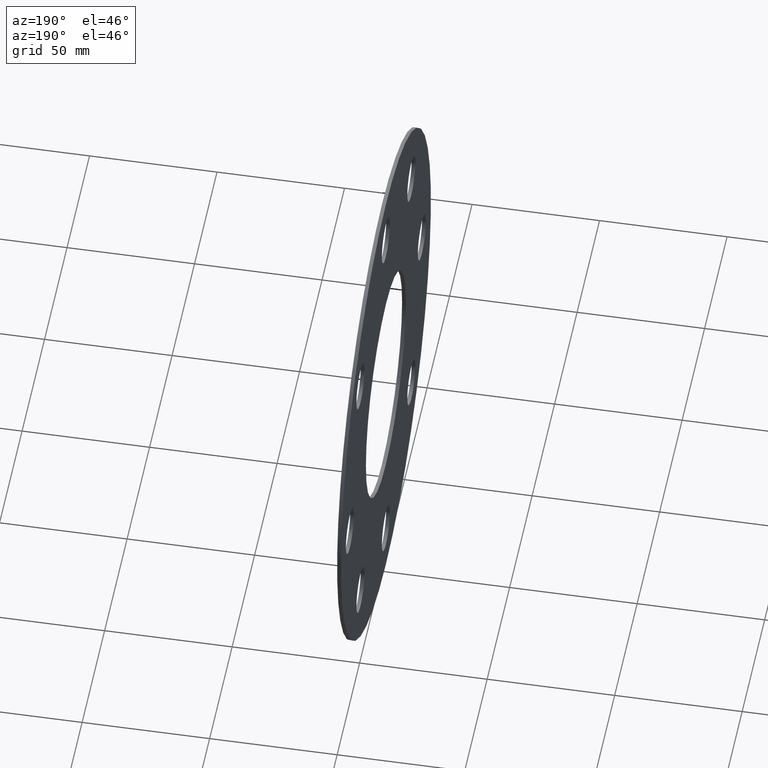
[diagram: clean part render]
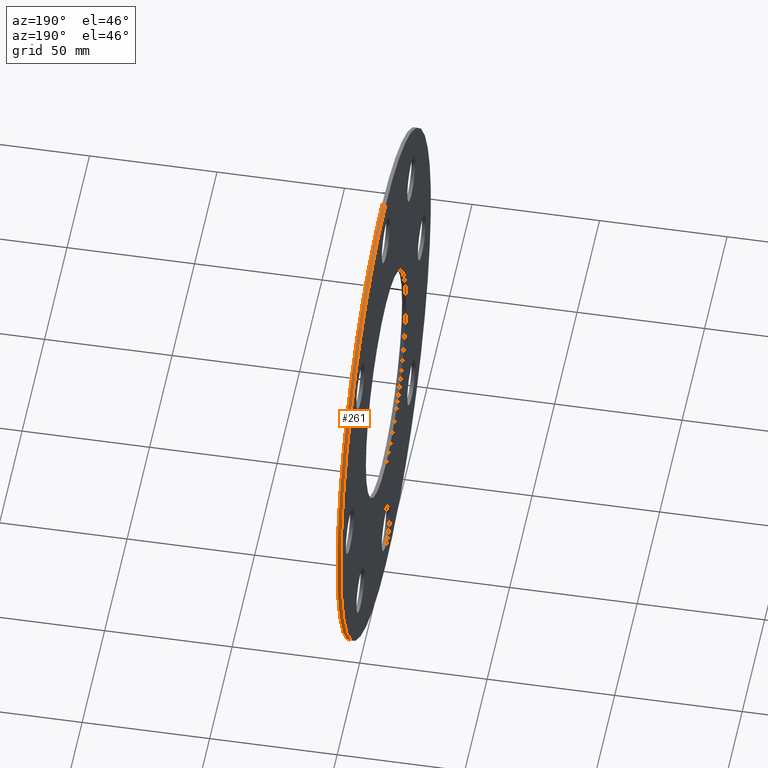
[diagram: same view with one face highlighted and labeled with its STEP entity id]
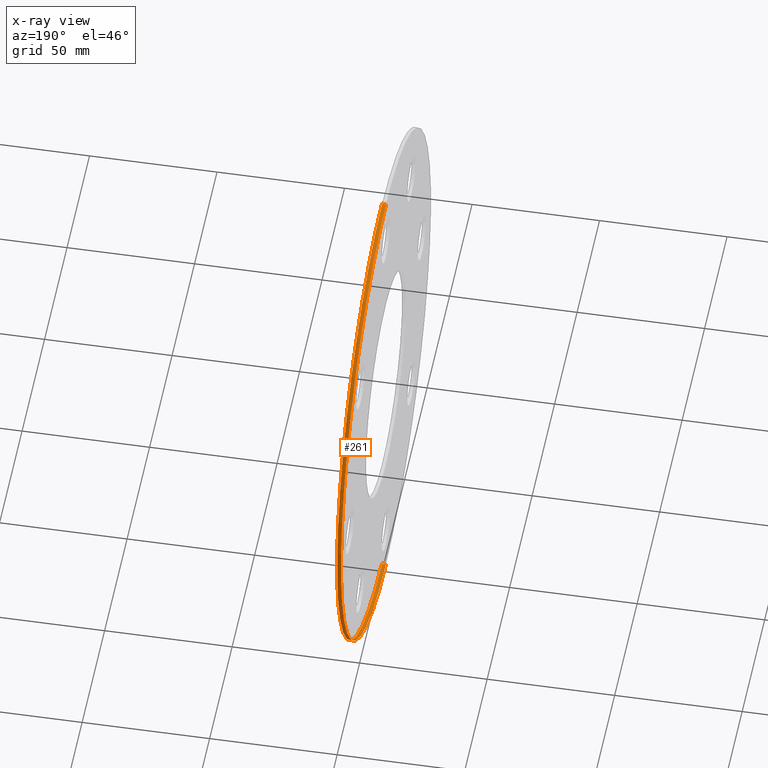
[diagram: x-ray of the same camera — body ghosted, the highlighted face saturated]
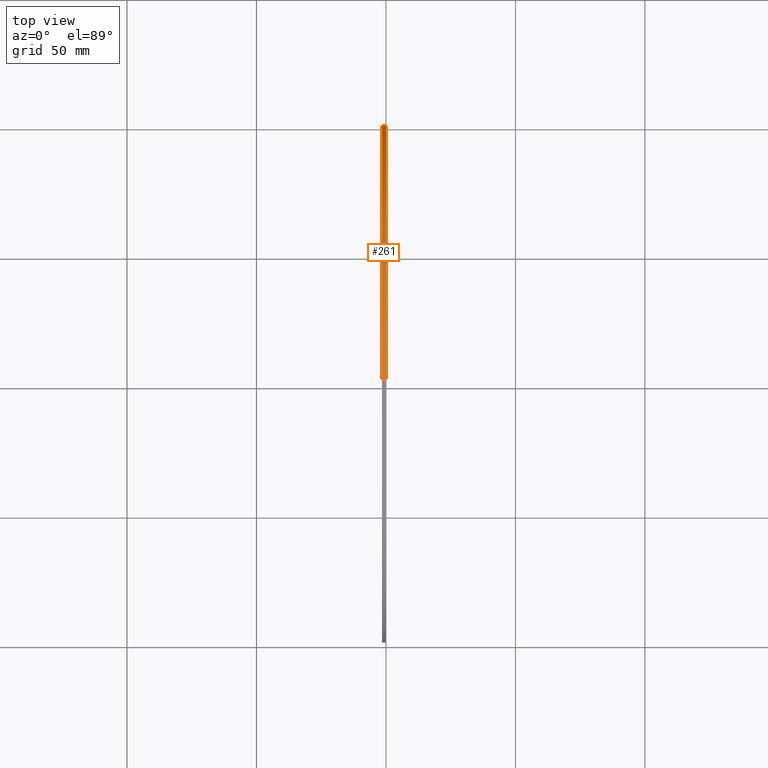
[diagram: same view with one face highlighted and labeled with its STEP entity id]
A machine part, auxiliary view. The second image highlights one B-rep face of the part: STEP entity #261.
The next image is the same camera in x-ray: the body ghosted, the highlighted face saturated — about 0% of this face is hidden behind the body in this view.
A second angle (top view) of the same face is appended — the face is thin or edge-on in the first view.
In plain terms, the highlighted cylindrical surface (partial cylindrical patch) has radius 100 mm, axis along (1, 0, 0).
Its self-contained STEP definition (entity closure, byte-faithful):
#87 = VECTOR ( 'NONE', #398, 1000.000000000000000 ) ;
#95 = ORIENTED_EDGE ( 'NONE', *, *, #621, .T. ) ;
#103 = CARTESIAN_POINT ( 'NONE',  ( 0.000000000000000000, 0.000000000000000000, 0.000000000000000000 ) ) ;
#118 = VECTOR ( 'NONE', #619, 1000.000000000000000 ) ;
#126 = DIRECTION ( 'NONE',  ( 0.000000000000000000, 0.000000000000000000, -1.000000000000000000 ) ) ;
#137 = EDGE_CURVE ( 'NONE', #700, #448, #635, .T. ) ;
#194 = DIRECTION ( 'NONE',  ( 0.000000000000000000, 0.000000000000000000, -1.000000000000000000 ) ) ;
#205 = LINE ( 'NONE', #516, #87 ) ;
#213 = VERTEX_POINT ( 'NONE', #301 ) ;
#236 = ORIENTED_EDGE ( 'NONE', *, *, #383, .T. ) ;
#261 = ADVANCED_FACE ( 'NONE', ( #731 ), #577, .T. ) ;
#283 = AXIS2_PLACEMENT_3D ( 'NONE', #642, #439, #126 ) ;
#301 = CARTESIAN_POINT ( 'NONE',  ( -1.500000000000000000, 1.224646799147353217E-14, 100.0000000000000000 ) ) ;
#335 = DIRECTION ( 'NONE',  ( 0.000000000000000000, 0.000000000000000000, -1.000000000000000000 ) ) ;
#341 = ORIENTED_EDGE ( 'NONE', *, *, #137, .F. ) ;
#344 = CARTESIAN_POINT ( 'NONE',  ( 0.000000000000000000, 1.224646799147353217E-14, 100.0000000000000000 ) ) ;
#383 = EDGE_CURVE ( 'NONE', #213, #448, #205, .T. ) ;
#393 = CARTESIAN_POINT ( 'NONE',  ( 0.000000000000000000, 0.000000000000000000, -100.0000000000000000 ) ) ;
#394 = CIRCLE ( 'NONE', #283, 100.0000000000000000 ) ;
#395 = CARTESIAN_POINT ( 'NONE',  ( -1.500000000000000000, 0.000000000000000000, 0.000000000000000000 ) ) ;
#398 = DIRECTION ( 'NONE',  ( 1.000000000000000000, 0.000000000000000000, 0.000000000000000000 ) ) ;
#430 = DIRECTION ( 'NONE',  ( 1.000000000000000000, 0.000000000000000000, 0.000000000000000000 ) ) ;
#439 = DIRECTION ( 'NONE',  ( 1.000000000000000000, 0.000000000000000000, 0.000000000000000000 ) ) ;
#448 = VERTEX_POINT ( 'NONE', #344 ) ;
#501 = LINE ( 'NONE', #631, #118 ) ;
#509 = ORIENTED_EDGE ( 'NONE', *, *, #527, .F. ) ;
#516 = CARTESIAN_POINT ( 'NONE',  ( -1.500000000000000000, 1.224646799147353217E-14, 100.0000000000000000 ) ) ;
#519 = CARTESIAN_POINT ( 'NONE',  ( -1.500000000000000000, 0.000000000000000000, -100.0000000000000000 ) ) ;
#520 = DIRECTION ( 'NONE',  ( 1.000000000000000000, 0.000000000000000000, 0.000000000000000000 ) ) ;
#527 = EDGE_CURVE ( 'NONE', #765, #700, #501, .T. ) ;
#577 = CYLINDRICAL_SURFACE ( 'NONE', #620, 100.0000000000000000 ) ;
#619 = DIRECTION ( 'NONE',  ( 1.000000000000000000, 0.000000000000000000, 0.000000000000000000 ) ) ;
#620 = AXIS2_PLACEMENT_3D ( 'NONE', #395, #520, #335 ) ;
#621 = EDGE_CURVE ( 'NONE', #765, #213, #394, .T. ) ;
#631 = CARTESIAN_POINT ( 'NONE',  ( -1.500000000000000000, 0.000000000000000000, -100.0000000000000000 ) ) ;
#635 = CIRCLE ( 'NONE', #664, 100.0000000000000000 ) ;
#642 = CARTESIAN_POINT ( 'NONE',  ( -1.500000000000000000, 0.000000000000000000, 0.000000000000000000 ) ) ;
#664 = AXIS2_PLACEMENT_3D ( 'NONE', #103, #430, #194 ) ;
#675 = EDGE_LOOP ( 'NONE', ( #95, #236, #341, #509 ) ) ;
#700 = VERTEX_POINT ( 'NONE', #393 ) ;
#731 = FACE_OUTER_BOUND ( 'NONE', #675, .T. ) ;
#765 = VERTEX_POINT ( 'NONE', #519 ) ;